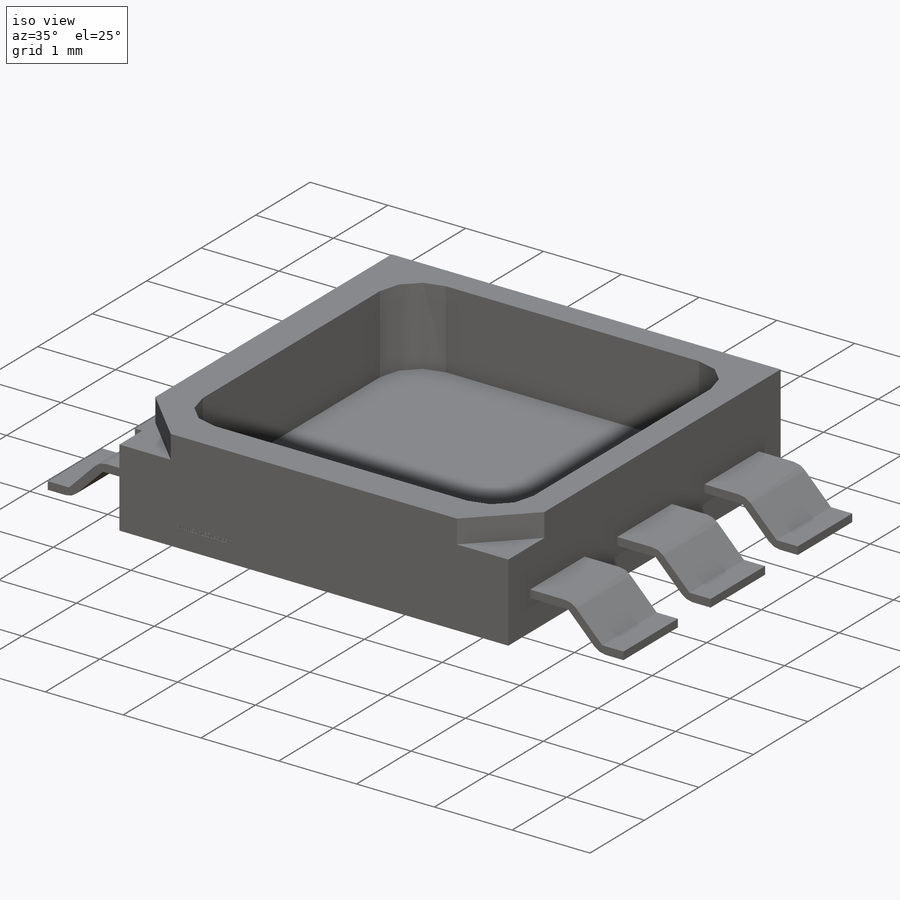
[diagram: iso view]
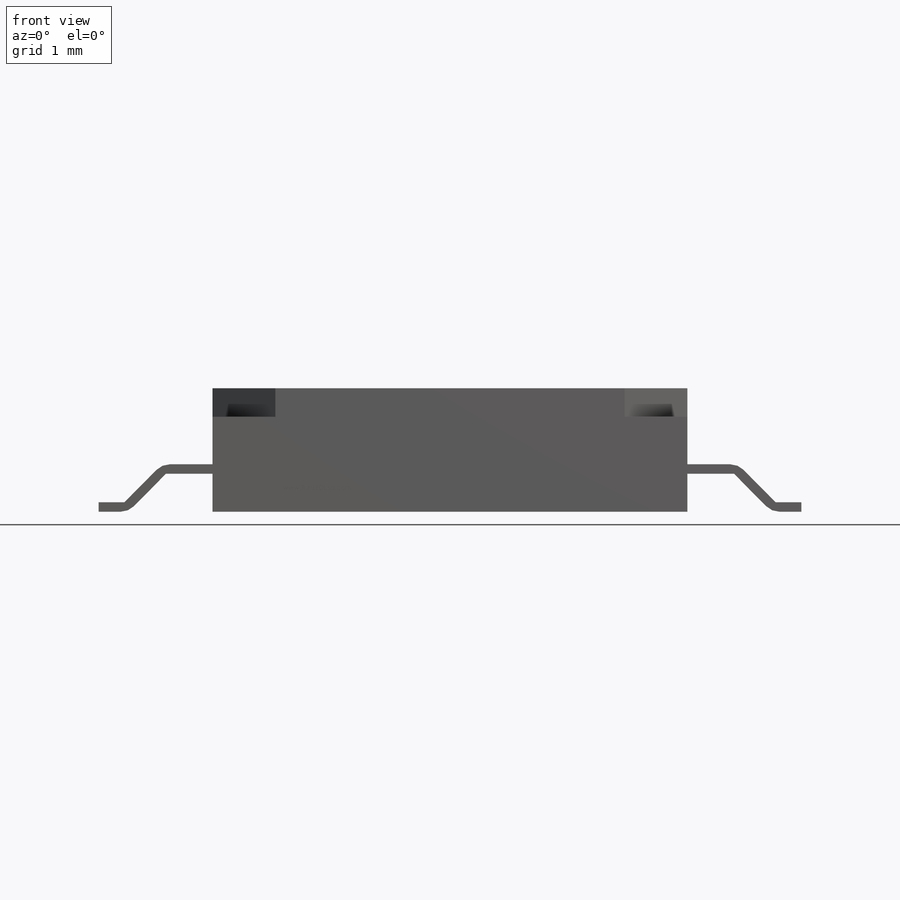
[diagram: front view]
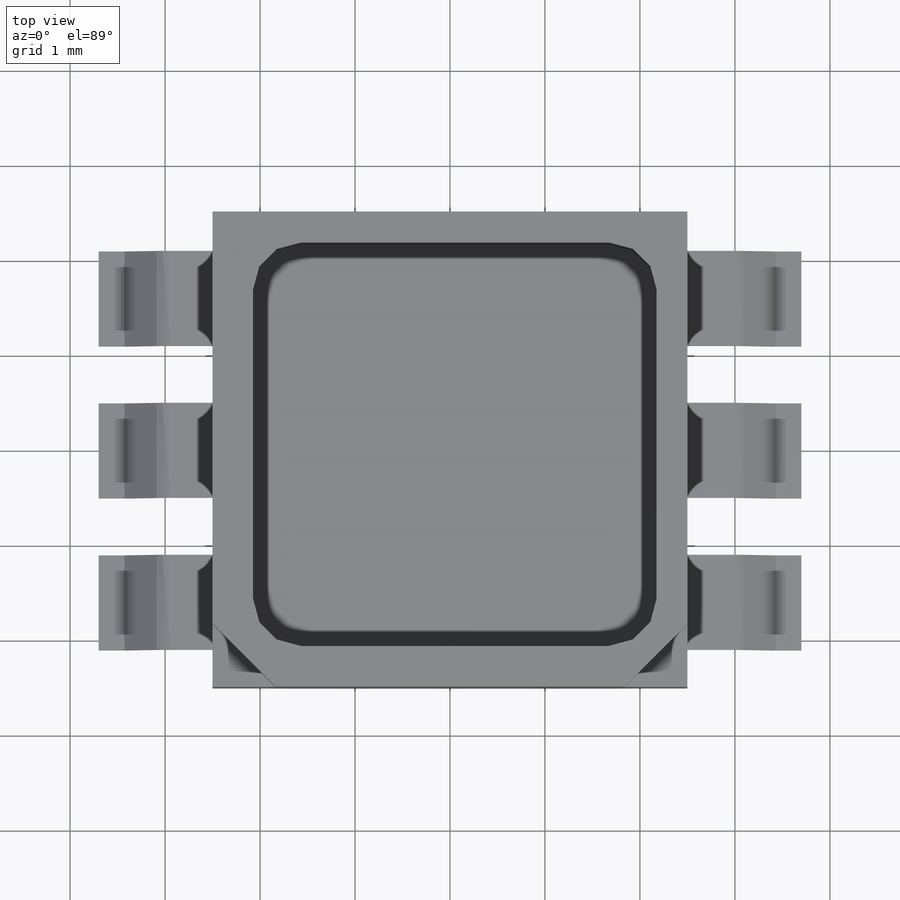
[diagram: top view]
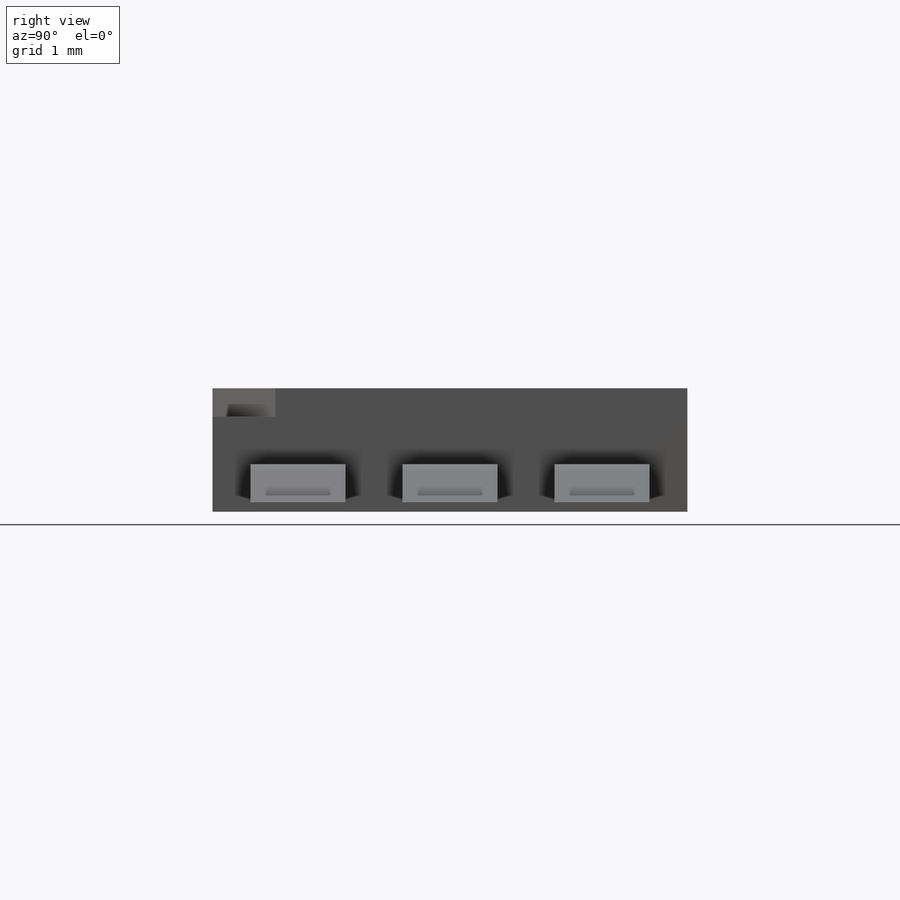
[diagram: right view]
SOLIDWORKS PART (.sldprt)
format: sldprt  version: not decoded by parser v0  size: 637,952 bytes
history: native  units: mm
features: sketch x8, extrude x4, cut_extrude x3, plane x2, material x1, fillet x1 (+11 scaffold rows collapsed)
feature tree (30):
  scaffold x11  (default folders/planes/origin — collapsed)
  material  "Material <not specified>"
  sketch  "Sketch1"  dims[c1.D1=2.7mm c1.D2=3.4mm c1.D3=~0.918907mm c2.D3=45.0deg c2.D4=2.9mm c2.D5=2.7mm c2.D6=1.1mm c2.D7=~0.833608mm c3.D6=0.2mm c3.D7=0.4mm c3.D8=1.05mm c4.D7=1.1mm c4.D8=2.7mm c4.D6=1.1mm c5.D7=1.0mm c5.D8=0.4mm]
  sketch  "Sketch2"  dims[c1.D1=5.0mm c1.D2=1.3mm c1.D3=0.1mm c1.D4=~0.39017mm c2.D4=~176.430445deg c3.D4=0.1mm c3.D5=0.1mm c3.D6=7.4mm c3.D7=0.8mm c3.D8=~0.727487mm]
  extrude  "Extrude1"  Depth=5mm
  extrude  "Extrude2"  [1 undecoded]
  sketch  "Sketch2<4>"  dims[D1=1.0mm]
  plane  "Plane1"  Offset=1.6mm
  sketch  "Sketch3"  dims[D1=0.0mm D2=0.0mm]
  extrude  "Extrude3"  Depth=1mm
  plane  "Plane2"  Offset=1.6mm
  sketch  "Sketch4"  dims[D1=0.0mm D2=0.0mm]
  extrude  "Extrude4"  Depth=1mm
  sketch  "Sketch5"  dims[c1.D1=0.25mm c1.D2=0.5mm c2.D1=4.25mm c2.D3=4.25mm]
  cut_extrude  "Cut-Extrude1"  Depth=0.3mm
  cut_extrude  "Cut-Extrude2"  [1 undecoded]
  sketch  "Sketch5<3>"  dims[D1=1.0mm]
  fillet  "Fillet1"  Radius=0.2mm
  sketch  "Sketch6"
  cut_extrude  "Cut-Extrude3"  Depth=0.01mm
decode coverage: 13 of 16 modeling features carry decoded parameters
note: ~ marks probable driven/reference dimensions
note: 2 parameter values undecoded
note: suppression state not decoded; provenance and decode notes live in map.json
